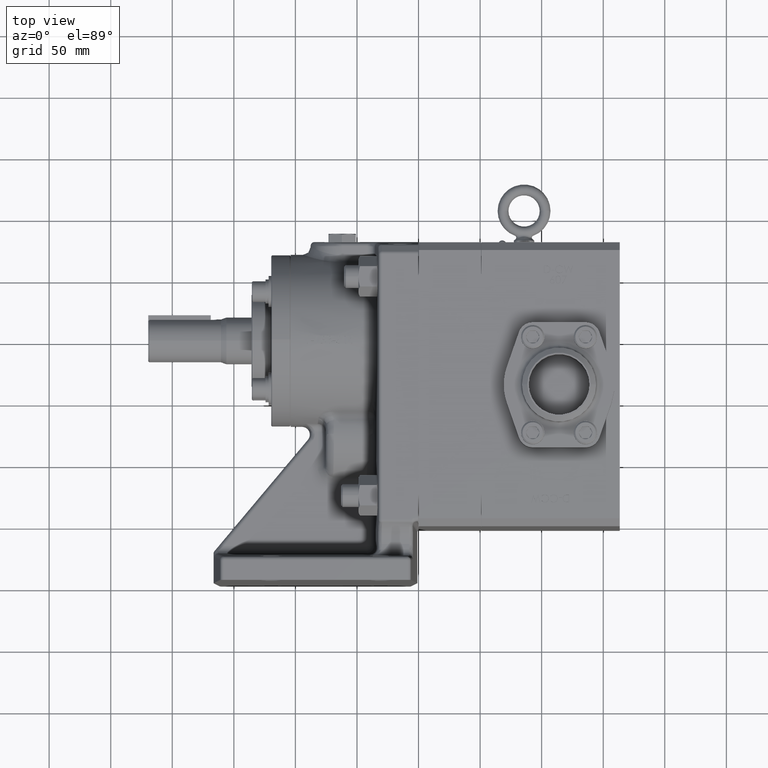
[diagram: clean part render]
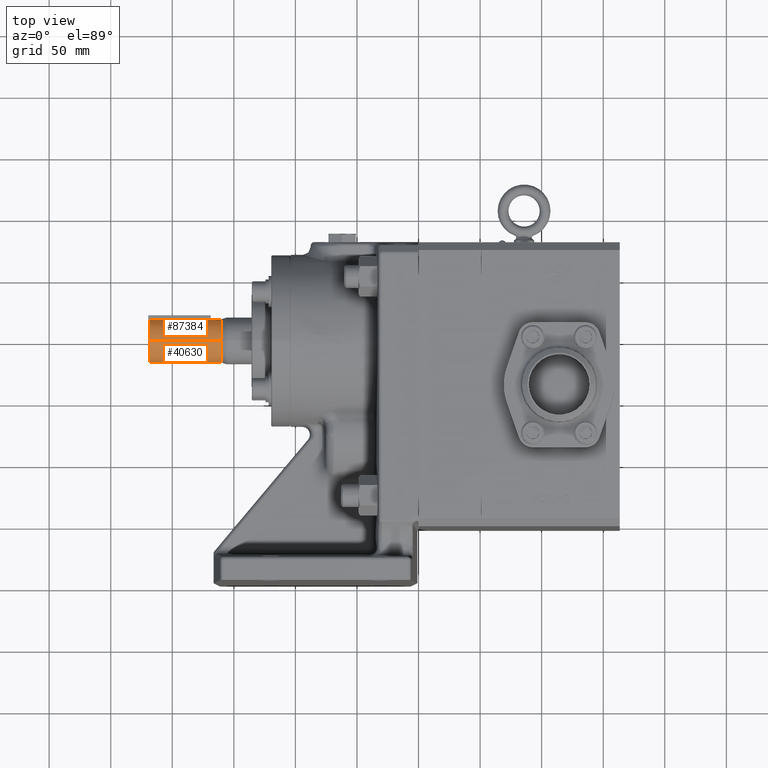
[diagram: same view with one multi-face feature highlighted, each face labeled with its STEP entity id]
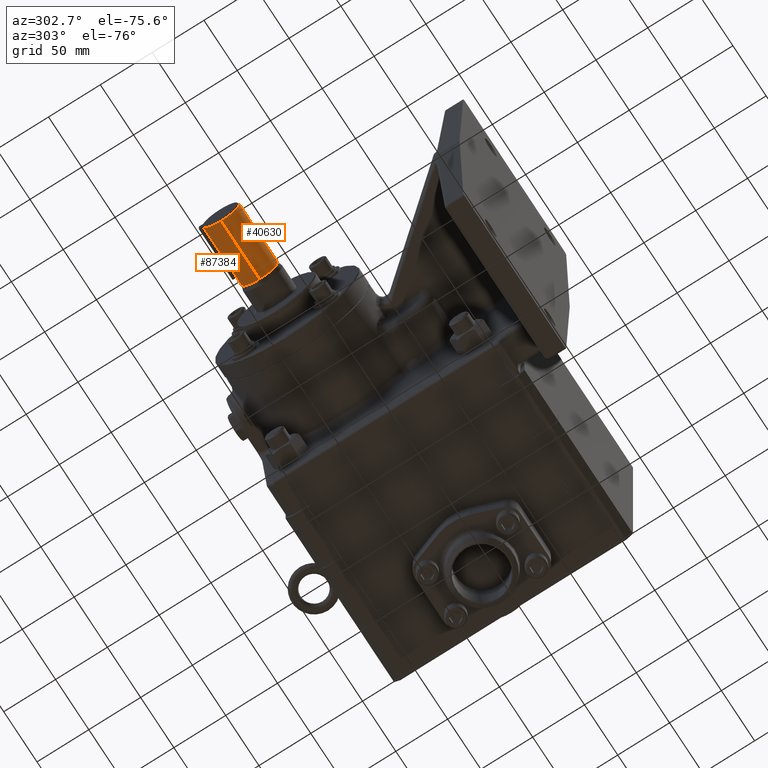
[diagram: same view with one multi-face feature highlighted, each face labeled with its STEP entity id]
A machine part, top view. The highlighted faces form ONE feature: a constant-radius fillet chain: 2 tangent blend faces with common blend radius 17.4498 mm. The faces share edges in the B-rep.
A second angle (auxiliary view) of the same feature is appended — it is thin or edge-on in the first view.
Their STEP definitions:
[1] entity #87384 (Cylinder):
#627 = EDGE_LOOP ( 'NONE', ( #44061, #54669, #35157, #96339, #58861, #50325, #46921, #66303 ) ) ;
#1025 = VERTEX_POINT ( 'NONE', #35678 ) ;
#2628 = EDGE_CURVE ( 'NONE', #88952, #98622, #53168, .T. ) ;
#3185 = CARTESIAN_POINT ( 'NONE',  ( 7.826593804039646300, 4.483821415351575500E-016, 0.0000000000000000000 ) ) ;
#4783 = AXIS2_PLACEMENT_3D ( 'NONE', #93475, #62839, #39975 ) ;
#5681 = CARTESIAN_POINT ( 'NONE',  ( -6.464959061253784600, 0.6791771598145023300, 0.1036370779866269700 ) ) ;
#5876 = CARTESIAN_POINT ( 'NONE',  ( -6.583000000000000200, 0.6688784923287622900, 0.1567500000000000000 ) ) ;
#6213 = EDGE_CURVE ( 'Defeatured_0_1525+Defeatured_0_1521+Defeatured_0_1522+Defeatured_0_1524', #28391, #33243, #49972, .T. ) ;
#10417 = CARTESIAN_POINT ( 'NONE',  ( 7.826593804039646300, 4.483821415351575500E-016, -0.6869999999999981700 ) ) ;
#12816 = CARTESIAN_POINT ( 'NONE',  ( -6.431272841827041700, 0.6858686117542648300, -0.04067853283279306000 ) ) ;
#13168 = CARTESIAN_POINT ( 'NONE',  ( -6.583000000000000200, 0.6688784923287622900, 0.1567500000000000000 ) ) ;
#13484 = CARTESIAN_POINT ( 'NONE',  ( -6.562398977034633600, 0.6691205344648226700, 0.1557270816417044600 ) ) ;
#15099 = AXIS2_PLACEMENT_3D ( 'NONE', #81075, #50492, #36060 ) ;
#20880 = CARTESIAN_POINT ( 'NONE',  ( -6.442116623545874000, 0.6835435214033701600, -0.06948664242169841400 ) ) ;
#21235 = CARTESIAN_POINT ( 'NONE',  ( -6.427264919690540700, 0.6867663127083346600, 0.02058427096186200800 ) ) ;
#21654 = CARTESIAN_POINT ( 'NONE',  ( -8.597999999999999000, 0.6688784923287622900, -0.1567500000000000000 ) ) ;
#23401 = EDGE_CURVE ( 'Defeatured_0_1522+Defeatured_0_1521+Defeatured_0_1523+Defeatured_0_1525', #83988, #28391, #35097, .T. ) ;
#26425 = DIRECTION ( 'NONE',  ( 0.0000000000000000000, 8.881784197001252300E-016, 1.000000000000000000 ) ) ;
#27682 = CARTESIAN_POINT ( 'NONE',  ( -6.447005142015386900, 0.6825409602995851100, -0.07861168162198162200 ) ) ;
#28003 = CARTESIAN_POINT ( 'NONE',  ( -6.487390246412451800, 0.6756245473695001700, 0.1246354465670446400 ) ) ;
#28346 = CARTESIAN_POINT ( 'NONE',  ( -6.487249098319646900, 0.6756450041562823700, -0.1245241009117782100 ) ) ;
#28391 = VERTEX_POINT ( 'NONE', #78596 ) ;
#28421 = EDGE_CURVE ( 'Defeatured_0_1520+Defeatured_0_1521+Defeatured_0_1521+Defeatured_0_1521', #1025, #98622, #50411, .T. ) ;
#28696 = CARTESIAN_POINT ( 'NONE',  ( -6.426241302673719100, 0.6870019844329281500, -0.01012521272995452400 ) ) ;
#29006 = CARTESIAN_POINT ( 'NONE',  ( -6.572608975645407800, 0.6688784923287625100, -0.1567500000000001100 ) ) ;
#32915 = DIRECTION ( 'NONE',  ( 1.000000000000000000, -0.0000000000000000000, -0.0000000000000000000 ) ) ;
#33243 = VERTEX_POINT ( 'NONE', #21654 ) ;
#34183 = LINE ( 'NONE', #93179, #90788 ) ;
#34560 = DIRECTION ( 'NONE',  ( 1.000000000000000000, -0.0000000000000000000, -0.0000000000000000000 ) ) ;
#35097 = B_SPLINE_CURVE_WITH_KNOTS ( 'NONE', 3,
 ( #13168, #98451, #13484, #74804, #43260, #66749, #67082, #28003, #59713, #5681, #35849, #59071, #67429, #43587, #66442, #21235, #97498, #28696, #75127, #12816, #58712, #20880, #27682, #50924, #51277, #66106, #28346, #97806, #74493, #82525, #36502, #97139, #29006, #82859 ),
 .UNSPECIFIED., .F., .F.,
 ( 4, 2, 2, 2, 2, 2, 2, 2, 2, 2, 2, 2, 2, 2, 2, 2, 4 ),
 ( 0.0000000000000000000, 0.0007803366569320106000, 0.001560673313864021200, 0.002341009970796031900, 0.003121346627728042400, 0.003901683284660052900, 0.004682019941592063800, 0.005462356598524074700, 0.006242693255456084800, 0.007023029912388095700, 0.007803366569320105800, 0.008583703226252117600, 0.009364039883184129300, 0.01014437654011614300, 0.01092471319704815500, 0.01170504985398016600, 0.01248538651091217800 ),
 .UNSPECIFIED. ) ;
#35157 = ORIENTED_EDGE ( 'NONE', *, *, #28421, .F. ) ;
#35518 = DIRECTION ( 'NONE',  ( 0.0000000000000000000, 0.0000000000000000000, -1.000000000000000000 ) ) ;
#35678 = CARTESIAN_POINT ( 'NONE',  ( -6.316747642748207900, 4.483821415351575500E-016, -0.6869999999999983900 ) ) ;
#35849 = CARTESIAN_POINT ( 'NONE',  ( -6.458482439790715900, 0.6803465419664098700, 0.09577075555719741200 ) ) ;
#36060 = DIRECTION ( 'NONE',  ( 0.0000000000000000000, 1.776356839400250500E-015, 1.000000000000000000 ) ) ;
#36502 = CARTESIAN_POINT ( 'NONE',  ( -6.542048885436698500, 0.6700552692881720500, -0.1516550411172291900 ) ) ;
#38099 = VECTOR ( 'NONE', #87942, 39.37007874015748100 ) ;
#39155 = CIRCLE ( 'NONE', #15099, 0.6869999999999981700 ) ;
#39975 = DIRECTION ( 'NONE',  ( 0.0000000000000000000, 0.0000000000000000000, -1.000000000000000000 ) ) ;
#41624 = CARTESIAN_POINT ( 'NONE',  ( -6.316747642748207900, 5.363653600114000500E-016, 0.6869999999999983900 ) ) ;
#42013 = CARTESIAN_POINT ( 'NONE',  ( -8.597999999999999000, 4.483821415351575500E-016, 0.0000000000000000000 ) ) ;
#43260 = CARTESIAN_POINT ( 'NONE',  ( -6.532351058698706600, 0.6707269062772057700, 0.1486964954376379700 ) ) ;
#43327 = DIRECTION ( 'NONE',  ( 1.000000000000000000, -0.0000000000000000000, -0.0000000000000000000 ) ) ;
#43587 = CARTESIAN_POINT ( 'NONE',  ( -6.434339945630012100, 0.6851887330961583500, 0.05074294101140542500 ) ) ;
#44061 = ORIENTED_EDGE ( 'NONE', *, *, #56777, .T. ) ;
#46921 = ORIENTED_EDGE ( 'NONE', *, *, #23401, .F. ) ;
#49972 = LINE ( 'NONE', #51670, #87345 ) ;
#50325 = ORIENTED_EDGE ( 'NONE', *, *, #6213, .F. ) ;
#50411 = CIRCLE ( 'NONE', #4783, 0.6869999999999983900 ) ;
#50492 = DIRECTION ( 'NONE',  ( 1.000000000000000000, -0.0000000000000000000, -0.0000000000000000000 ) ) ;
#50924 = CARTESIAN_POINT ( 'NONE',  ( -6.458327461663048800, 0.6803754867011322400, -0.09555708278465241400 ) ) ;
#51277 = CARTESIAN_POINT ( 'NONE',  ( -6.464841826616703800, 0.6791968707160184200, -0.1035129821297935100 ) ) ;
#51670 = CARTESIAN_POINT ( 'NONE',  ( 7.826593804039646300, 0.6688784923287618400, -0.1567500000000019200 ) ) ;
#53168 = LINE ( 'NONE', #58102, #65246 ) ;
#54450 = CARTESIAN_POINT ( 'NONE',  ( -8.597999999999999000, 5.325153766365805600E-016, 0.6869999999999981700 ) ) ;
#54669 = ORIENTED_EDGE ( 'NONE', *, *, #2628, .T. ) ;
#55816 = AXIS2_PLACEMENT_3D ( 'NONE', #3185, #32915, #35518 ) ;
#56777 = EDGE_CURVE ( 'Defeatured_0_1521+Defeatured_0_1524+Defeatured_0_1523+Defeatured_0_1525', #64769, #88952, #39155, .T. ) ;
#58102 = CARTESIAN_POINT ( 'NONE',  ( 7.826593804039646300, 5.325153766365805600E-016, 0.6869999999999981700 ) ) ;
#58712 = CARTESIAN_POINT ( 'NONE',  ( -6.434239508163858400, 0.6852104084314063500, -0.05046617981208328900 ) ) ;
#58861 = ORIENTED_EDGE ( 'NONE', *, *, #63105, .T. ) ;
#59071 = CARTESIAN_POINT ( 'NONE',  ( -6.447020678404060200, 0.6825373032053780900, 0.07865293712746999900 ) ) ;
#59713 = CARTESIAN_POINT ( 'NONE',  ( -6.479363591225602000, 0.6768223226351661700, 0.1180415262949413600 ) ) ;
#62213 = DIRECTION ( 'NONE',  ( 1.000000000000000000, -0.0000000000000000000, -0.0000000000000000000 ) ) ;
#62839 = DIRECTION ( 'NONE',  ( 1.000000000000000000, -0.0000000000000000000, -0.0000000000000000000 ) ) ;
#63105 = EDGE_CURVE ( 'Defeatured_0_1521+Defeatured_0_1524+Defeatured_0_1523+Defeatured_0_1525', #96625, #33243, #69996, .T. ) ;
#64684 = CARTESIAN_POINT ( 'NONE',  ( -8.597999999999999000, 4.483821415351575500E-016, -0.6869999999999981700 ) ) ;
#64769 = VERTEX_POINT ( 'NONE', #90885 ) ;
#65246 = VECTOR ( 'NONE', #34560, 39.37007874015748100 ) ;
#66106 = CARTESIAN_POINT ( 'NONE',  ( -6.479376617943211500, 0.6768196514301592100, -0.1180613658136834100 ) ) ;
#66303 = ORIENTED_EDGE ( 'NONE', *, *, #88939, .F. ) ;
#66442 = CARTESIAN_POINT ( 'NONE',  ( -6.431309477123215300, 0.6858604579377941500, 0.04083029168880573900 ) ) ;
#66687 = EDGE_CURVE ( 'NONE', #96625, #1025, #99559, .T. ) ;
#66749 = CARTESIAN_POINT ( 'NONE',  ( -6.513388931061065500, 0.6724246935293725100, 0.1408199633985059700 ) ) ;
#67082 = CARTESIAN_POINT ( 'NONE',  ( -6.504400806322363900, 0.6734279005758110300, 0.1360050965047425500 ) ) ;
#67141 = DIRECTION ( 'NONE',  ( -1.000000000000000000, 0.0000000000000000000, 0.0000000000000000000 ) ) ;
#67429 = CARTESIAN_POINT ( 'NONE',  ( -6.442172008665564500, 0.6835322313833657200, 0.06958544879845469900 ) ) ;
#69996 = CIRCLE ( 'NONE', #97627, 0.6869999999999981700 ) ;
#74493 = CARTESIAN_POINT ( 'NONE',  ( -6.513358753009129900, 0.6724280941394574800, -0.1408035961922245400 ) ) ;
#74804 = CARTESIAN_POINT ( 'NONE',  ( -6.542323023004994000, 0.6700391809086409000, 0.1517257712005756800 ) ) ;
#75127 = CARTESIAN_POINT ( 'NONE',  ( -6.427264358863943100, 0.6867664901424217500, -0.02054954112895783800 ) ) ;
#78596 = CARTESIAN_POINT ( 'NONE',  ( -6.583000000000000200, 0.6688784923287618400, -0.1567500000000002500 ) ) ;
#81075 = CARTESIAN_POINT ( 'NONE',  ( -8.597999999999999000, 4.483821415351575500E-016, 0.0000000000000000000 ) ) ;
#81516 = FACE_OUTER_BOUND ( 'NONE', #627, .T. ) ;
#82525 = CARTESIAN_POINT ( 'NONE',  ( -6.532281523152774700, 0.6707324372648770800, -0.1486714232440255500 ) ) ;
#82859 = CARTESIAN_POINT ( 'NONE',  ( -6.583000000000000200, 0.6688784923287618400, -0.1567500000000002500 ) ) ;
#83988 = VERTEX_POINT ( 'NONE', #5876 ) ;
#86354 = CYLINDRICAL_SURFACE ( 'NONE', #55816, 0.6869999999999981700 ) ;
#87345 = VECTOR ( 'NONE', #67141, 39.37007874015748100 ) ;
#87384 = ADVANCED_FACE ( 'Defeatured_0_1521', ( #81516 ), #86354, .T. ) ;
#87942 = DIRECTION ( 'NONE',  ( 1.000000000000000000, -0.0000000000000000000, -0.0000000000000000000 ) ) ;
#88939 = EDGE_CURVE ( 'Defeatured_0_1523+Defeatured_0_1521+Defeatured_0_1524+Defeatured_0_1522', #64769, #83988, #34183, .T. ) ;
#88952 = VERTEX_POINT ( 'NONE', #54450 ) ;
#90788 = VECTOR ( 'NONE', #62213, 39.37007874015748100 ) ;
#90885 = CARTESIAN_POINT ( 'NONE',  ( -8.597999999999999000, 0.6688784923287622900, 0.1567500000000000000 ) ) ;
#93179 = CARTESIAN_POINT ( 'NONE',  ( 7.826593804039646300, 0.6688784923287626200, 0.1567499999999980900 ) ) ;
#93475 = CARTESIAN_POINT ( 'NONE',  ( -6.316747642748207900, 4.483821415351575500E-016, 0.0000000000000000000 ) ) ;
#96339 = ORIENTED_EDGE ( 'NONE', *, *, #66687, .F. ) ;
#96625 = VERTEX_POINT ( 'NONE', #64684 ) ;
#97139 = CARTESIAN_POINT ( 'NONE',  ( -6.562206596304501500, 0.6691258743720137600, -0.1557044625018857200 ) ) ;
#97498 = CARTESIAN_POINT ( 'NONE',  ( -6.426258811470011900, 0.6869979895233624400, 0.01039273488866687200 ) ) ;
#97627 = AXIS2_PLACEMENT_3D ( 'NONE', #42013, #43327, #26425 ) ;
#97806 = CARTESIAN_POINT ( 'NONE',  ( -6.504184449797343800, 0.6734536564771848000, -0.1358771354082054800 ) ) ;
#98451 = CARTESIAN_POINT ( 'NONE',  ( -6.572609137599897600, 0.6688784923287620600, 0.1567500000000000000 ) ) ;
#98622 = VERTEX_POINT ( 'NONE', #41624 ) ;
#99559 = LINE ( 'NONE', #10417, #38099 ) ;
[2] entity #40630 (Cylinder):
#954 = AXIS2_PLACEMENT_3D ( 'NONE', #40750, #94626, #95634 ) ;
#1025 = VERTEX_POINT ( 'NONE', #35678 ) ;
#2628 = EDGE_CURVE ( 'NONE', #88952, #98622, #53168, .T. ) ;
#9958 = AXIS2_PLACEMENT_3D ( 'NONE', #78370, #16001, #85106 ) ;
#10417 = CARTESIAN_POINT ( 'NONE',  ( 7.826593804039646300, 4.483821415351575500E-016, -0.6869999999999981700 ) ) ;
#13871 = ORIENTED_EDGE ( 'NONE', *, *, #66687, .T. ) ;
#16001 = DIRECTION ( 'NONE',  ( 1.000000000000000000, -0.0000000000000000000, -0.0000000000000000000 ) ) ;
#34560 = DIRECTION ( 'NONE',  ( 1.000000000000000000, -0.0000000000000000000, -0.0000000000000000000 ) ) ;
#35678 = CARTESIAN_POINT ( 'NONE',  ( -6.316747642748207900, 4.483821415351575500E-016, -0.6869999999999983900 ) ) ;
#36280 = CIRCLE ( 'NONE', #9958, 0.6869999999999981700 ) ;
#38099 = VECTOR ( 'NONE', #87942, 39.37007874015748100 ) ;
#40630 = ADVANCED_FACE ( 'Defeatured_0_1521', ( #96267 ), #98676, .T. ) ;
#40750 = CARTESIAN_POINT ( 'NONE',  ( 7.826593804039646300, 4.483821415351575500E-016, 0.0000000000000000000 ) ) ;
#41087 = ORIENTED_EDGE ( 'NONE', *, *, #43560, .F. ) ;
#41624 = CARTESIAN_POINT ( 'NONE',  ( -6.316747642748207900, 5.363653600114000500E-016, 0.6869999999999983900 ) ) ;
#43560 = EDGE_CURVE ( 'Defeatured_0_1520+Defeatured_0_1521+Defeatured_0_1521+Defeatured_0_1521', #98622, #1025, #84260, .T. ) ;
#45683 = ORIENTED_EDGE ( 'NONE', *, *, #90227, .T. ) ;
#53168 = LINE ( 'NONE', #58102, #65246 ) ;
#54450 = CARTESIAN_POINT ( 'NONE',  ( -8.597999999999999000, 5.325153766365805600E-016, 0.6869999999999981700 ) ) ;
#58102 = CARTESIAN_POINT ( 'NONE',  ( 7.826593804039646300, 5.325153766365805600E-016, 0.6869999999999981700 ) ) ;
#63457 = CARTESIAN_POINT ( 'NONE',  ( -6.316747642748207900, 4.483821415351575500E-016, 0.0000000000000000000 ) ) ;
#64118 = DIRECTION ( 'NONE',  ( 1.000000000000000000, -0.0000000000000000000, -0.0000000000000000000 ) ) ;
#64684 = CARTESIAN_POINT ( 'NONE',  ( -8.597999999999999000, 4.483821415351575500E-016, -0.6869999999999981700 ) ) ;
#65246 = VECTOR ( 'NONE', #34560, 39.37007874015748100 ) ;
#66687 = EDGE_CURVE ( 'NONE', #96625, #1025, #99559, .T. ) ;
#68015 = EDGE_LOOP ( 'NONE', ( #97241, #45683, #13871, #41087 ) ) ;
#78370 = CARTESIAN_POINT ( 'NONE',  ( -8.597999999999999000, 4.483821415351575500E-016, 0.0000000000000000000 ) ) ;
#84260 = CIRCLE ( 'NONE', #88200, 0.6869999999999983900 ) ;
#85106 = DIRECTION ( 'NONE',  ( 0.0000000000000000000, 0.0000000000000000000, 1.000000000000000000 ) ) ;
#87942 = DIRECTION ( 'NONE',  ( 1.000000000000000000, -0.0000000000000000000, -0.0000000000000000000 ) ) ;
#88200 = AXIS2_PLACEMENT_3D ( 'NONE', #63457, #64118, #94133 ) ;
#88952 = VERTEX_POINT ( 'NONE', #54450 ) ;
#90227 = EDGE_CURVE ( 'Defeatured_0_1521+Defeatured_0_1524+Defeatured_0_1523+Defeatured_0_1525', #88952, #96625, #36280, .T. ) ;
#94133 = DIRECTION ( 'NONE',  ( 0.0000000000000000000, 0.0000000000000000000, -1.000000000000000000 ) ) ;
#94626 = DIRECTION ( 'NONE',  ( 1.000000000000000000, -0.0000000000000000000, -0.0000000000000000000 ) ) ;
#95634 = DIRECTION ( 'NONE',  ( 0.0000000000000000000, 0.0000000000000000000, -1.000000000000000000 ) ) ;
#96267 = FACE_OUTER_BOUND ( 'NONE', #68015, .T. ) ;
#96625 = VERTEX_POINT ( 'NONE', #64684 ) ;
#97241 = ORIENTED_EDGE ( 'NONE', *, *, #2628, .F. ) ;
#98622 = VERTEX_POINT ( 'NONE', #41624 ) ;
#98676 = CYLINDRICAL_SURFACE ( 'NONE', #954, 0.6869999999999981700 ) ;
#99559 = LINE ( 'NONE', #10417, #38099 ) ;